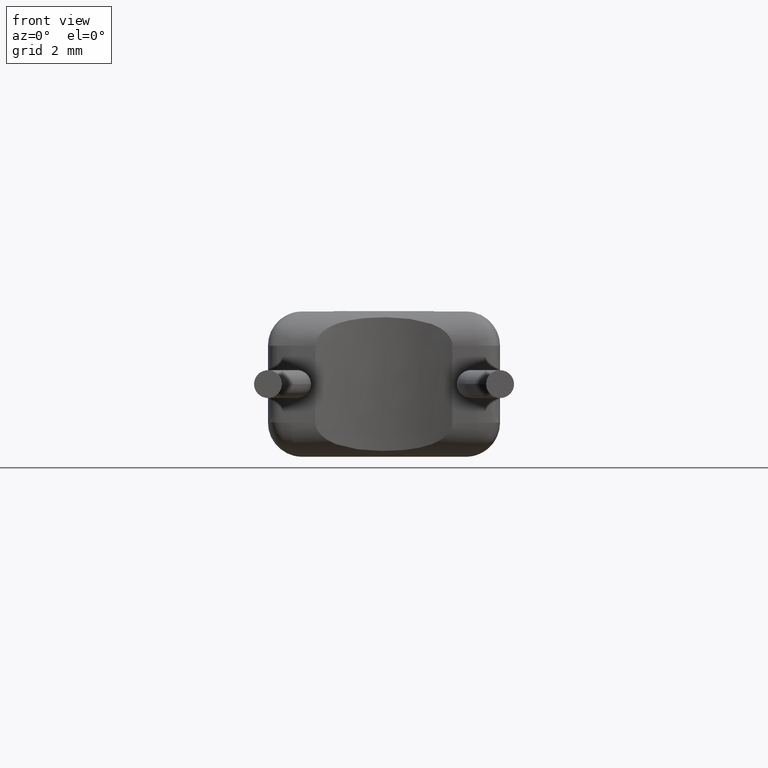
[diagram: clean part render]
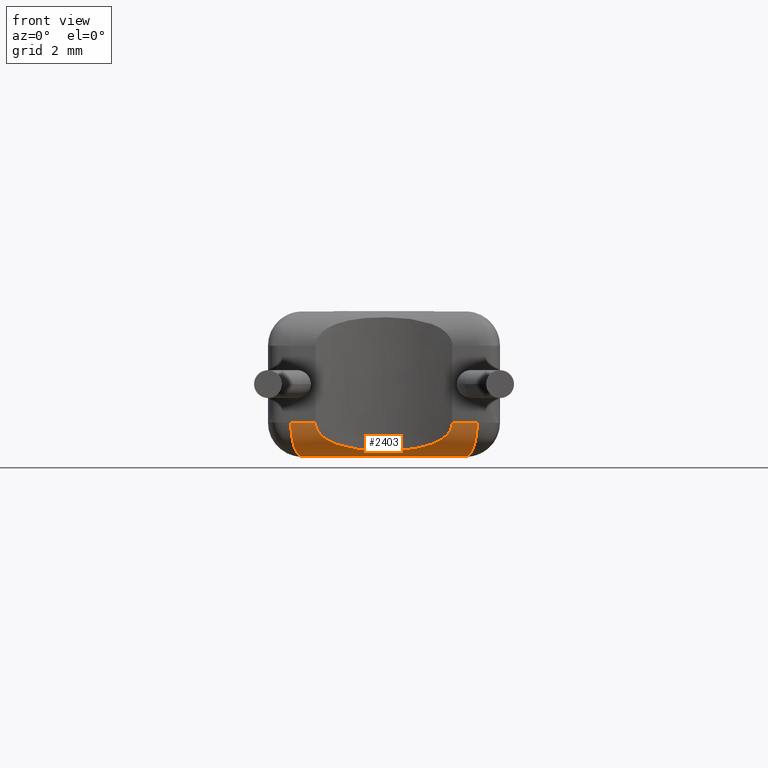
[diagram: same view with one face highlighted and labeled with its STEP entity id]
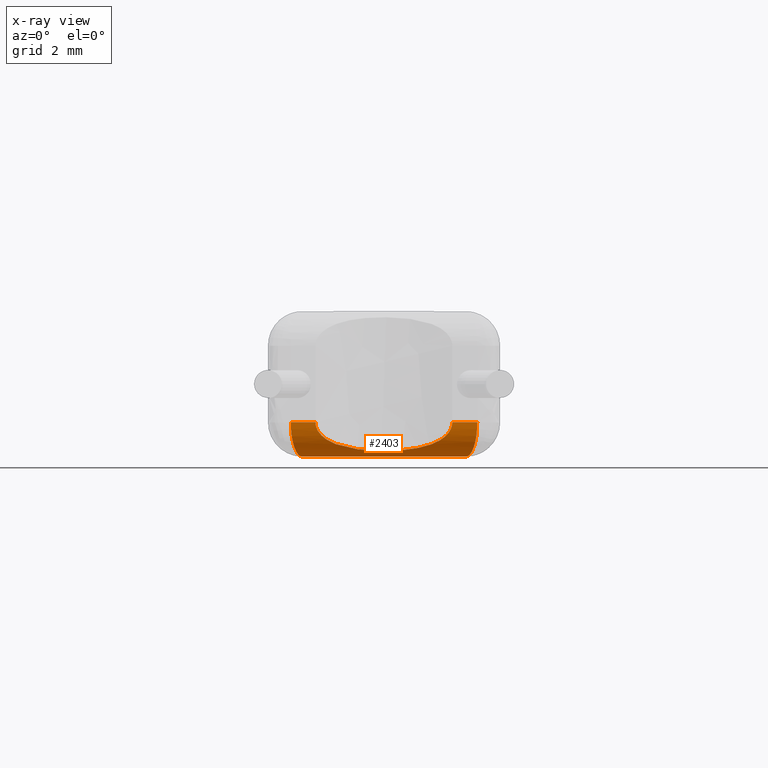
[diagram: x-ray of the same camera — body ghosted, the highlighted face saturated]
A machine part, front view. The second image highlights one B-rep face of the part: STEP entity #2403.
The next image is the same camera in x-ray: the body ghosted, the highlighted face saturated — about 0% of this face is hidden behind the body in this view.
In plain terms, the highlighted cylindrical surface (edge-blend (fillet) strip) has radius 0.75 mm, axis along (-1, 0, 0).
Its self-contained STEP definition (entity closure, byte-faithful):
#24 = CARTESIAN_POINT ( 'NONE',  ( 0.5694124196891179300, 0.2082049690010204800, 0.2313465683639246700 ) ) ;
#41 = CARTESIAN_POINT ( 'NONE',  ( 4.578517249393525100, 0.004448575246847916900, 0.6588869532855015100 ) ) ;
#125 = CARTESIAN_POINT ( 'NONE',  ( 0.5523605962181416000, 0.1567559107539005500, 0.2903923441303170000 ) ) ;
#260 = CARTESIAN_POINT ( 'NONE',  ( 3.554981690294618500, 0.1816201364993791600, 0.2579568872742659700 ) ) ;
#280 = CARTESIAN_POINT ( 'NONE',  ( 1.799797650082261700, 0.2542893916044327000, 0.1847937295130207000 ) ) ;
#437 = B_SPLINE_CURVE_WITH_KNOTS ( 'NONE', 3,
 ( #3782, #2149, #585, #4780, #1633, #5309, #125, #4270, #3759, #24, #1606, #5374, #1658, #4313, #1088, #2210, #5844, #2676, #6387, #631, #5907, #2700, #4294, #4804, #4334 ),
 .UNSPECIFIED., .F., .F.,
 ( 4, 2, 2, 2, 1, 2, 2, 2, 2, 1, 1, 2, 2, 4 ),
 ( 0.0000000000000000000, 0.2500000000000001700, 0.3750000000000003300, 0.4375000000000003900, 0.4687500000000005600, 0.4843750000000006100, 0.5000000000000006700, 0.6250000000000012200, 0.6875000000000014400, 0.7187500000000015500, 0.7343750000000015500, 0.7421875000000016700, 0.7500000000000018900, 1.000000000000000000 ),
 .UNSPECIFIED. ) ;
#439 = ORIENTED_EDGE ( 'NONE', *, *, #4810, .F. ) ;
#492 = CARTESIAN_POINT ( 'NONE',  ( 4.460022575888667800, 0.3599322576366126300, 0.1087072338064041000 ) ) ;
#510 = CARTESIAN_POINT ( 'NONE',  ( 4.406949245505043900, 0.5191522752610908700, 0.03611218287968584500 ) ) ;
#585 = CARTESIAN_POINT ( 'NONE',  ( 0.5062987293926352100, 0.01795557625133375300, 0.5587454053496582200 ) ) ;
#631 = CARTESIAN_POINT ( 'NONE',  ( 0.6523101594042568500, 0.4569288695926031500, 0.05962304207552358200 ) ) ;
#765 = CARTESIAN_POINT ( 'NONE',  ( 3.691947606671956100, 0.1367565338230801500, 0.3083423014822903000 ) ) ;
#819 = CARTESIAN_POINT ( 'NONE',  ( 3.923840842598741200, 0.04771849875301516200, 0.4792318742857755700 ) ) ;
#895 = ORIENTED_EDGE ( 'NONE', *, *, #5263, .F. ) ;
#977 = VERTEX_POINT ( 'NONE', #1622 ) ;
#1039 = CARTESIAN_POINT ( 'NONE',  ( 4.383683222416205000, 0.5889503464916721100, 0.01744707961826403100 ) ) ;
#1084 = CARTESIAN_POINT ( 'NONE',  ( 4.565352458740735000, 0.04394265589883780700, 0.4959454342965376500 ) ) ;
#1088 = CARTESIAN_POINT ( 'NONE',  ( 0.6181574045641794500, 0.3543666843458761500, 0.1123766336348057300 ) ) ;
#1108 = CARTESIAN_POINT ( 'NONE',  ( 4.580000000000001000, -5.421010862427522200E-017, 0.7499999999999995600 ) ) ;
#1200 = DIRECTION ( 'NONE',  ( 1.000000000000000000, -0.0000000000000000000, 0.0000000000000000000 ) ) ;
#1232 = CARTESIAN_POINT ( 'NONE',  ( 4.580000000000001000, 0.0000000000000000000, 0.7500000000000002200 ) ) ;
#1333 = CARTESIAN_POINT ( 'NONE',  ( 4.007719891468376300, 0.01224624839214337300, 0.6008890115214646800 ) ) ;
#1399 = CARTESIAN_POINT ( 'NONE',  ( 2.685506959246554400, 0.3319543927606726200, 0.1273139872717951000 ) ) ;
#1557 = CARTESIAN_POINT ( 'NONE',  ( 4.494222461605928300, 0.2573326130778390600, 0.1838558836255043100 ) ) ;
#1606 = CARTESIAN_POINT ( 'NONE',  ( 0.5724635415231654800, 0.2173820302788800100, 0.2219267701414752400 ) ) ;
#1622 = CARTESIAN_POINT ( 'NONE',  ( 1.040000000000000500, 0.0000000000000000000, 0.7500000000000006700 ) ) ;
#1625 = CARTESIAN_POINT ( 'NONE',  ( 4.474151281265911000, 0.3175461457024408300, 0.1364900195474668700 ) ) ;
#1633 = CARTESIAN_POINT ( 'NONE',  ( 0.5330696757992574600, 0.09838402278027227900, 0.3751219797975861600 ) ) ;
#1651 = CARTESIAN_POINT ( 'NONE',  ( 4.543533522231437700, 0.1093993715153945300, 0.3588904331631319600 ) ) ;
#1658 = CARTESIAN_POINT ( 'NONE',  ( 0.5860072328925464100, 0.2580417033270378000, 0.1822125921564697000 ) ) ;
#1669 = CARTESIAN_POINT ( 'NONE',  ( 0.0000000000000000000, 0.7499999999999998900, 0.7500000000000002200 ) ) ;
#1853 = CARTESIAN_POINT ( 'NONE',  ( 1.945671573417849800, 0.2833116682158089400, 0.1623879136824624400 ) ) ;
#2144 = CARTESIAN_POINT ( 'NONE',  ( 4.534232693994914200, 0.1373018738776319000, 0.3164845151120182500 ) ) ;
#2149 = CARTESIAN_POINT ( 'NONE',  ( 0.4999997928480117100, -8.766791004082006000E-017, 0.6558935034818299500 ) ) ;
#2210 = CARTESIAN_POINT ( 'NONE',  ( 0.6252740593676193700, 0.3757345008298904600, 0.09955741012834989900 ) ) ;
#2234 = EDGE_LOOP ( 'NONE', ( #2377, #6777, #439, #5179, #895, #3125 ) ) ;
#2364 = DIRECTION ( 'NONE',  ( 1.000000000000000000, -0.0000000000000000000, 0.0000000000000000000 ) ) ;
#2377 = ORIENTED_EDGE ( 'NONE', *, *, #2739, .F. ) ;
#2391 = CARTESIAN_POINT ( 'NONE',  ( 1.040000000000000500, -3.841294415798250600E-016, 0.6738151804787369000 ) ) ;
#2403 = ADVANCED_FACE ( 'NONE', ( #3376 ), #3451, .T. ) ;
#2456 = CARTESIAN_POINT ( 'NONE',  ( 1.150205479113755000, 0.04730574448931562600, 0.4804754072604116600 ) ) ;
#2622 = CARTESIAN_POINT ( 'NONE',  ( 4.429978807233883500, 0.4500635698987818200, 0.06210686761280000800 ) ) ;
#2643 = B_SPLINE_CURVE_WITH_KNOTS ( 'NONE', 3,
 ( #3468, #3953, #1333, #819, #3438, #765, #260, #6619, #5015, #5077, #1399, #4517, #6664, #1853, #280, #6713, #4492, #5540, #2456, #3978, #2391, #5104 ),
 .UNSPECIFIED., .F., .F.,
 ( 4, 2, 2, 2, 2, 2, 2, 2, 2, 2, 4 ),
 ( 2.173292390346433400E-019, 0.0002256227862612684400, 0.0004512455725225366700, 0.0009024911450450738800, 0.001353736717567611400, 0.001804982290090148800, 0.002256227862612686500, 0.002707473435135223600, 0.003158719007657760200, 0.003384341793919028500, 0.003609964580180296800 ),
 .UNSPECIFIED. ) ;
#2648 = CARTESIAN_POINT ( 'NONE',  ( 4.360279524549690100, 0.6591614332209577700, 0.005432366421393974500 ) ) ;
#2669 = CARTESIAN_POINT ( 'NONE',  ( 4.452734328013823600, 0.3817970002118727400, 0.09594631739261762200 ) ) ;
#2676 = CARTESIAN_POINT ( 'NONE',  ( 0.6422878541928169800, 0.4268390970657433000, 0.07297239156427991200 ) ) ;
#2693 = CARTESIAN_POINT ( 'NONE',  ( 4.580000097101028600, -1.084202172485504400E-016, 0.7058882448614036700 ) ) ;
#2700 = CARTESIAN_POINT ( 'NONE',  ( 0.6557893529980043400, 0.4673685026264487500, 0.05528892400229969100 ) ) ;
#2712 = DIRECTION ( 'NONE',  ( -1.000000000000000000, 0.0000000000000000000, 0.0000000000000000000 ) ) ;
#2739 = EDGE_CURVE ( 'NONE', #3514, #3618, #3531, .T. ) ;
#3080 = VERTEX_POINT ( 'NONE', #3928 ) ;
#3125 = ORIENTED_EDGE ( 'NONE', *, *, #3502, .F. ) ;
#3152 = CARTESIAN_POINT ( 'NONE',  ( 4.559254049453054200, 0.06223781633050137100, 0.4497328001737531100 ) ) ;
#3193 = CARTESIAN_POINT ( 'NONE',  ( 4.344918613203737400, 0.7052441623514282800, 0.001081937065007265700 ) ) ;
#3260 = CARTESIAN_POINT ( 'NONE',  ( 0.4999999999999997800, 0.0000000000000000000, 0.7500000000000065500 ) ) ;
#3308 = CARTESIAN_POINT ( 'NONE',  ( 0.4999999999999997800, 0.7499999999999998900, 0.0000000000000000000 ) ) ;
#3371 = VECTOR ( 'NONE', #1200, 1000.000000000000000 ) ;
#3376 = FACE_OUTER_BOUND ( 'NONE', #2234, .T. ) ;
#3438 = CARTESIAN_POINT ( 'NONE',  ( 3.869511238416048400, 0.06984068248545430300, 0.4305621020205904200 ) ) ;
#3451 = CYLINDRICAL_SURFACE ( 'NONE', #5068, 0.7500000000000000000 ) ;
#3468 = CARTESIAN_POINT ( 'NONE',  ( 4.035000000000000100, 1.497130711957640200E-016, 0.7500000000000006700 ) ) ;
#3502 = EDGE_CURVE ( 'NONE', #3618, #4691, #4937, .T. ) ;
#3514 = VERTEX_POINT ( 'NONE', #4288 ) ;
#3531 = LINE ( 'NONE', #4961, #3371 ) ;
#3561 = VERTEX_POINT ( 'NONE', #3260 ) ;
#3618 = VERTEX_POINT ( 'NONE', #5968 ) ;
#3665 = CARTESIAN_POINT ( 'NONE',  ( 4.480991738768309100, 0.2970247763435291400, 0.1515118888747431500 ) ) ;
#3685 = CARTESIAN_POINT ( 'NONE',  ( 4.555688264724397900, 0.07293515286340708500, 0.4262739062634455200 ) ) ;
#3711 = CARTESIAN_POINT ( 'NONE',  ( 4.330000000000000100, 0.7499999999999998900, 0.0000000000000000000 ) ) ;
#3759 = CARTESIAN_POINT ( 'NONE',  ( 0.5649095550282411400, 0.1946486097140242000, 0.2456332497292257300 ) ) ;
#3782 = CARTESIAN_POINT ( 'NONE',  ( 0.4999999999999997800, 0.0000000000000000000, 0.7500000000000065500 ) ) ;
#3817 = VECTOR ( 'NONE', #2364, 1000.000000000000000 ) ;
#3852 = DIRECTION ( 'NONE',  ( -1.000000000000000000, -0.0000000000000000000, -0.0000000000000000000 ) ) ;
#3928 = CARTESIAN_POINT ( 'NONE',  ( 0.7499999999999998900, 0.7499999999999997800, 0.0000000000000000000 ) ) ;
#3953 = CARTESIAN_POINT ( 'NONE',  ( 4.035000000000001000, -9.529120656610875000E-019, 0.6735877012334230400 ) ) ;
#3978 = CARTESIAN_POINT ( 'NONE',  ( 1.067509903638184800, 0.01233503781187927700, 0.6007581614320086600 ) ) ;
#4118 = EDGE_CURVE ( 'NONE', #3514, #977, #2643, .T. ) ;
#4198 = CARTESIAN_POINT ( 'NONE',  ( 4.574113903812070200, 0.01765852684498141500, 0.5884145742486586200 ) ) ;
#4227 = CARTESIAN_POINT ( 'NONE',  ( 4.391499294912764000, 0.5655021299832886400, 0.02292480823237477000 ) ) ;
#4270 = CARTESIAN_POINT ( 'NONE',  ( 0.5606281446379484100, 0.1817284624695705300, 0.2603706541447231600 ) ) ;
#4288 = CARTESIAN_POINT ( 'NONE',  ( 4.035000000000000100, 1.497130711957640200E-016, 0.7500000000000006700 ) ) ;
#4294 = CARTESIAN_POINT ( 'NONE',  ( 0.6762993907856402800, 0.5288929853073300900, 0.03045074687809753600 ) ) ;
#4313 = CARTESIAN_POINT ( 'NONE',  ( 0.5979518076023816500, 0.2937602356069790000, 0.1527543314949580400 ) ) ;
#4334 = CARTESIAN_POINT ( 'NONE',  ( 0.7499999999999998900, 0.7499999999999997800, 0.0000000000000000000 ) ) ;
#4492 = CARTESIAN_POINT ( 'NONE',  ( 1.382530738638713800, 0.1365535913927976900, 0.3085394760032028100 ) ) ;
#4517 = CARTESIAN_POINT ( 'NONE',  ( 2.389220032984381800, 0.3319321492383484100, 0.1273289212280842000 ) ) ;
#4691 = VERTEX_POINT ( 'NONE', #4969 ) ;
#4748 = CARTESIAN_POINT ( 'NONE',  ( 4.368073337234668500, 0.6357799981105067800, 0.008700858712773628900 ) ) ;
#4772 = CARTESIAN_POINT ( 'NONE',  ( 4.529226344640544100, 0.1523209351803284100, 0.2960408866559076100 ) ) ;
#4780 = CARTESIAN_POINT ( 'NONE',  ( 0.5251958497544873000, 0.07459779380605537100, 0.4201156271548345300 ) ) ;
#4791 = DIRECTION ( 'NONE',  ( 0.0000000000000000000, 0.0000000000000000000, 1.000000000000000000 ) ) ;
#4804 = CARTESIAN_POINT ( 'NONE',  ( 0.7074957676874408200, 0.6224873030607275300, 1.829591166069290200E-016 ) ) ;
#4810 = EDGE_CURVE ( 'NONE', #3561, #977, #6647, .T. ) ;
#4819 = CARTESIAN_POINT ( 'NONE',  ( 4.547828001113591000, 0.09651593045585359100, 0.3808527227581348700 ) ) ;
#4937 = B_SPLINE_CURVE_WITH_KNOTS ( 'NONE', 3,
 ( #1108, #2693, #41, #4198, #5304, #6844, #1084, #3152, #3685, #4819, #1651, #2144, #4772, #5345, #6310, #5836, #1557, #3665, #1625, #492, #2669, #5326, #2622, #5860, #510, #4227, #1039, #4748, #2648, #3193, #6891, #3711 ),
 .UNSPECIFIED., .F., .F.,
 ( 4, 2, 2, 2, 2, 2, 2, 2, 2, 2, 2, 2, 2, 2, 2, 4 ),
 ( 0.0000000000000000000, 0.1171126811002939500, 0.1756690216504409300, 0.2342253622005879000, 0.2985789693260170200, 0.3629325764514461100, 0.4272861835768752000, 0.4916397907023043500, 0.5573087075375841000, 0.6229776243728638600, 0.6886465412081436100, 0.7543154580434233700, 0.8157365935325675600, 0.8771577290217116300, 0.9385788645108558100, 1.000000000000000000 ),
 .UNSPECIFIED. ) ;
#4961 = CARTESIAN_POINT ( 'NONE',  ( 4.580000000000001000, 0.0000000000000000000, 0.7500000000000002200 ) ) ;
#4969 = CARTESIAN_POINT ( 'NONE',  ( 4.330000000000000100, 0.7499999999999998900, 0.0000000000000000000 ) ) ;
#5015 = CARTESIAN_POINT ( 'NONE',  ( 3.130443351750179700, 0.2831674888345692700, 0.1624986213030806500 ) ) ;
#5068 = AXIS2_PLACEMENT_3D ( 'NONE', #1669, #2712, #4791 ) ;
#5077 = CARTESIAN_POINT ( 'NONE',  ( 2.834151852516339200, 0.3221758549028594900, 0.1335123972668194300 ) ) ;
#5104 = CARTESIAN_POINT ( 'NONE',  ( 1.040000000000000500, 0.0000000000000000000, 0.7500000000000006700 ) ) ;
#5179 = ORIENTED_EDGE ( 'NONE', *, *, #6247, .T. ) ;
#5204 = VECTOR ( 'NONE', #3852, 1000.000000000000000 ) ;
#5263 = EDGE_CURVE ( 'NONE', #4691, #3080, #6544, .T. ) ;
#5304 = CARTESIAN_POINT ( 'NONE',  ( 4.572282942948217700, 0.02315135883233615500, 0.5649287076242127700 ) ) ;
#5309 = CARTESIAN_POINT ( 'NONE',  ( 0.5472425937526418400, 0.1412656353854103400, 0.3111358965613645300 ) ) ;
#5326 = CARTESIAN_POINT ( 'NONE',  ( 4.437712443686430100, 0.4268626563429575000, 0.07264613429581558100 ) ) ;
#5345 = CARTESIAN_POINT ( 'NONE',  ( 4.518518599140860700, 0.1844441937453976100, 0.2566943477061658900 ) ) ;
#5374 = CARTESIAN_POINT ( 'NONE',  ( 0.5742861375167656000, 0.2228580769994612800, 0.2164728998924078900 ) ) ;
#5540 = CARTESIAN_POINT ( 'NONE',  ( 1.204563295927491900, 0.06945831242393264700, 0.4313481773294384800 ) ) ;
#5836 = CARTESIAN_POINT ( 'NONE',  ( 4.500612726941148400, 0.2381618191710607500, 0.2011780090489891400 ) ) ;
#5844 = CARTESIAN_POINT ( 'NONE',  ( 0.6365212252970410300, 0.4095163782900310100, 0.08161877644995121900 ) ) ;
#5860 = CARTESIAN_POINT ( 'NONE',  ( 4.414583123600763800, 0.4962506370472762300, 0.04382182891288617700 ) ) ;
#5907 = CARTESIAN_POINT ( 'NONE',  ( 0.6543515739787365600, 0.4630549076410450100, 0.05705444262739198200 ) ) ;
#5968 = CARTESIAN_POINT ( 'NONE',  ( 4.580000000000001000, -5.421010862427522200E-017, 0.7499999999999995600 ) ) ;
#6247 = EDGE_CURVE ( 'NONE', #3561, #3080, #437, .T. ) ;
#6310 = CARTESIAN_POINT ( 'NONE',  ( 4.512817202995549300, 0.2015483910077701900, 0.2377914372125350100 ) ) ;
#6387 = CARTESIAN_POINT ( 'NONE',  ( 0.6492659182839205500, 0.4477918707882376800, 0.06352588524309249500 ) ) ;
#6544 = LINE ( 'NONE', #3308, #5204 ) ;
#6619 = CARTESIAN_POINT ( 'NONE',  ( 3.274993698324230300, 0.2543549604444013700, 0.1847583801791106700 ) ) ;
#6647 = LINE ( 'NONE', #1232, #3817 ) ;
#6664 = CARTESIAN_POINT ( 'NONE',  ( 2.241245990930657200, 0.3221745167517670000, 0.1335169759893007300 ) ) ;
#6713 = CARTESIAN_POINT ( 'NONE',  ( 1.518834748316269900, 0.1812440080967363500, 0.2583662367698505400 ) ) ;
#6777 = ORIENTED_EDGE ( 'NONE', *, *, #4118, .T. ) ;
#6844 = CARTESIAN_POINT ( 'NONE',  ( 4.567902220412550600, 0.03629342335926435300, 0.5186941376481522000 ) ) ;
#6891 = CARTESIAN_POINT ( 'NONE',  ( 4.337351514542762100, 0.7279454563714473600, 2.120581198577820400E-016 ) ) ;